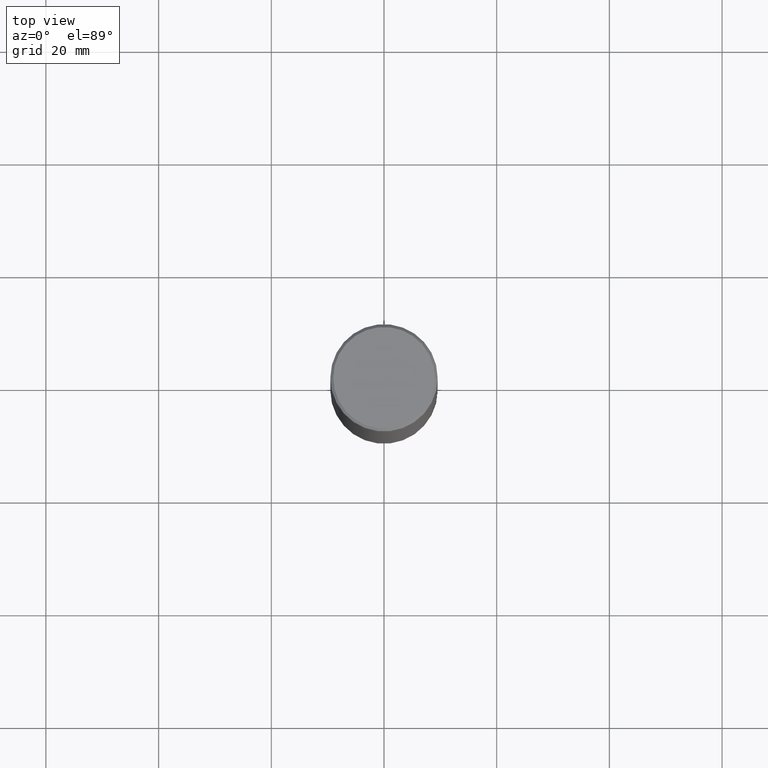
[diagram: clean part render]
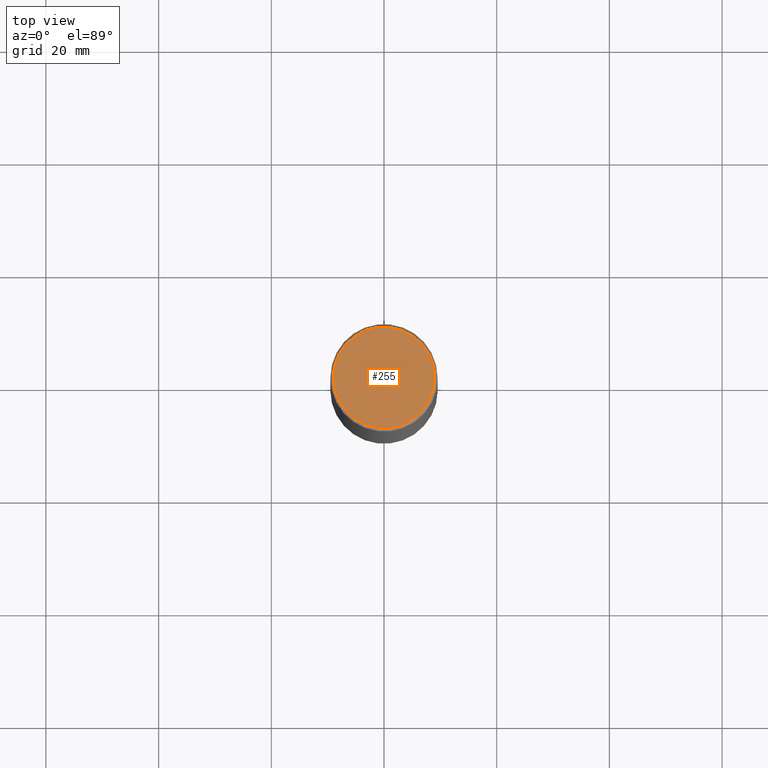
[diagram: same view with one face highlighted and labeled with its STEP entity id]
A machine part, top view. The second image highlights one B-rep face of the part: STEP entity #255.
In plain terms, the highlighted planar face has unit normal (0, -0, -1).
Its self-contained STEP definition (entity closure, byte-faithful):
#2 = DIRECTION ( 'NONE',  ( -2.445468806185136597E-29, 3.491481338843145583E-15, 1.000000000000000000 ) ) ;
#16 = ORIENTED_EDGE ( 'NONE', *, *, #436, .T. ) ;
#52 = CARTESIAN_POINT ( 'NONE',  ( -0.3549999999999990941, 2.513866563967049153E-15, 4.268512490082953109E-18 ) ) ;
#80 = DIRECTION ( 'NONE',  ( -1.000000000000000000, 6.982962677686265922E-15, -4.876176775795935793E-29 ) ) ;
#115 = CARTESIAN_POINT ( 'NONE',  ( -1.043851414335219820E-46, 1.490343170380447200E-32, 4.268512490100411279E-18 ) ) ;
#122 = AXIS2_PLACEMENT_3D ( 'NONE', #340, #2, #302 ) ;
#124 = FACE_OUTER_BOUND ( 'NONE', #320, .T. ) ;
#149 = CIRCLE ( 'NONE', #122, 0.3549999999999990941 ) ;
#164 = DIRECTION ( 'NONE',  ( 2.438088387897960049E-29, -3.491481338843145188E-15, -1.000000000000000000 ) ) ;
#192 = DIRECTION ( 'NONE',  ( -2.445468806185136597E-29, 3.491481338843145583E-15, 1.000000000000000000 ) ) ;
#202 = CARTESIAN_POINT ( 'NONE',  ( 0.3549999999999990941, -2.538996582575035132E-15, 4.268512490117958041E-18 ) ) ;
#244 = AXIS2_PLACEMENT_3D ( 'NONE', #419, #164, #80 ) ;
#255 = ADVANCED_FACE ( 'NONE', ( #124 ), #272, .F. ) ;
#269 = DIRECTION ( 'NONE',  ( 1.000000000000000000, -6.982962677686265133E-15, 4.876231632512000515E-29 ) ) ;
#272 = PLANE ( 'NONE',  #244 ) ;
#302 = DIRECTION ( 'NONE',  ( 1.000000000000000000, -6.982962677686265133E-15, 4.876231632512000515E-29 ) ) ;
#315 = EDGE_CURVE ( 'NONE', #364, #360, #488, .T. ) ;
#320 = EDGE_LOOP ( 'NONE', ( #484, #16 ) ) ;
#340 = CARTESIAN_POINT ( 'NONE',  ( -1.043851414335219820E-46, 1.490343170380447200E-32, 4.268512490100411279E-18 ) ) ;
#360 = VERTEX_POINT ( 'NONE', #202 ) ;
#364 = VERTEX_POINT ( 'NONE', #52 ) ;
#369 = AXIS2_PLACEMENT_3D ( 'NONE', #115, #192, #269 ) ;
#419 = CARTESIAN_POINT ( 'NONE',  ( 2.478951750578617898E-15, 0.3549999999999990941, -1.237341619044263272E-15 ) ) ;
#436 = EDGE_CURVE ( 'NONE', #360, #364, #149, .T. ) ;
#484 = ORIENTED_EDGE ( 'NONE', *, *, #315, .T. ) ;
#488 = CIRCLE ( 'NONE', #369, 0.3549999999999990941 ) ;